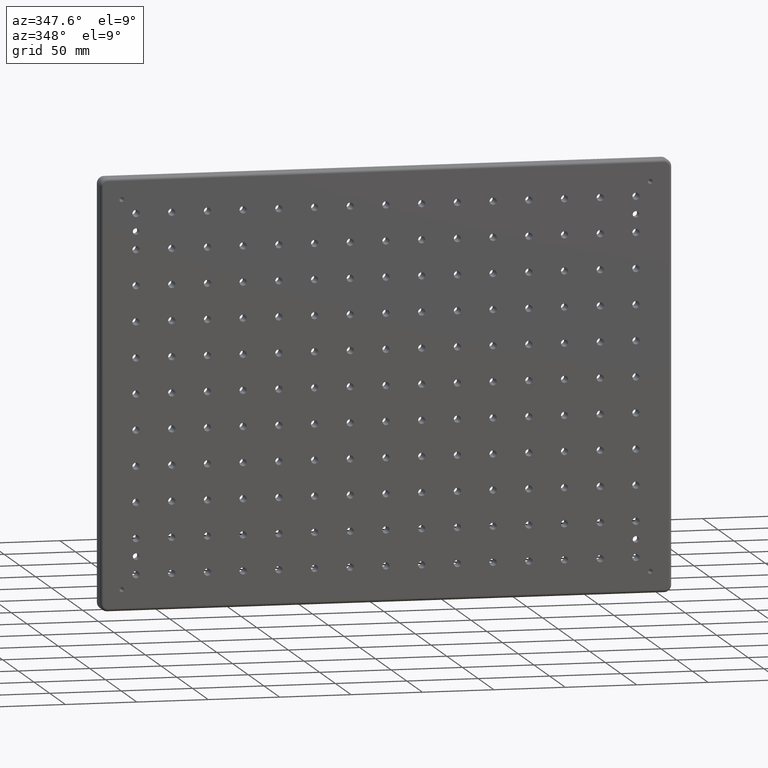
[diagram: clean part render]
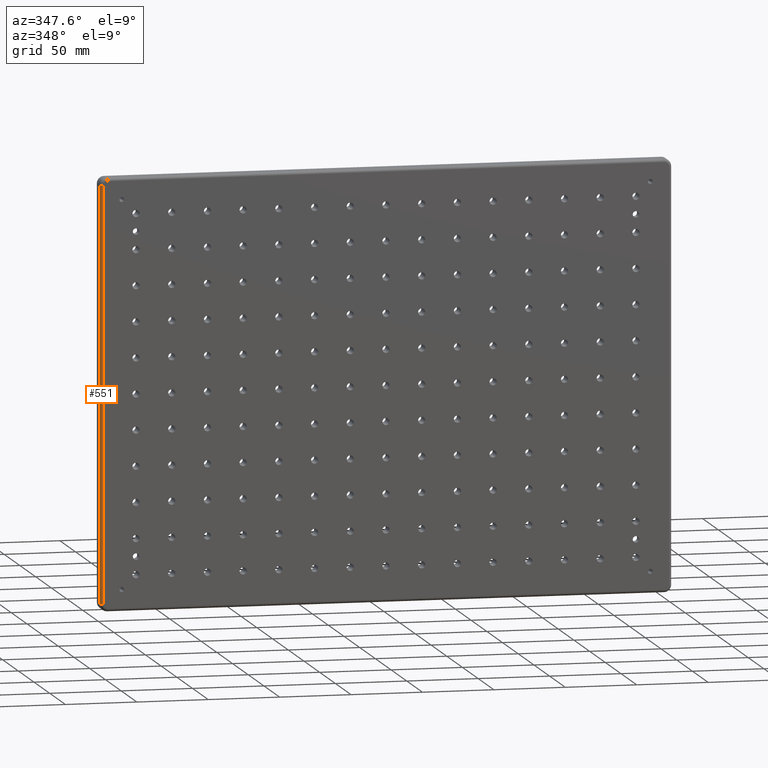
[diagram: same view with one face highlighted and labeled with its STEP entity id]
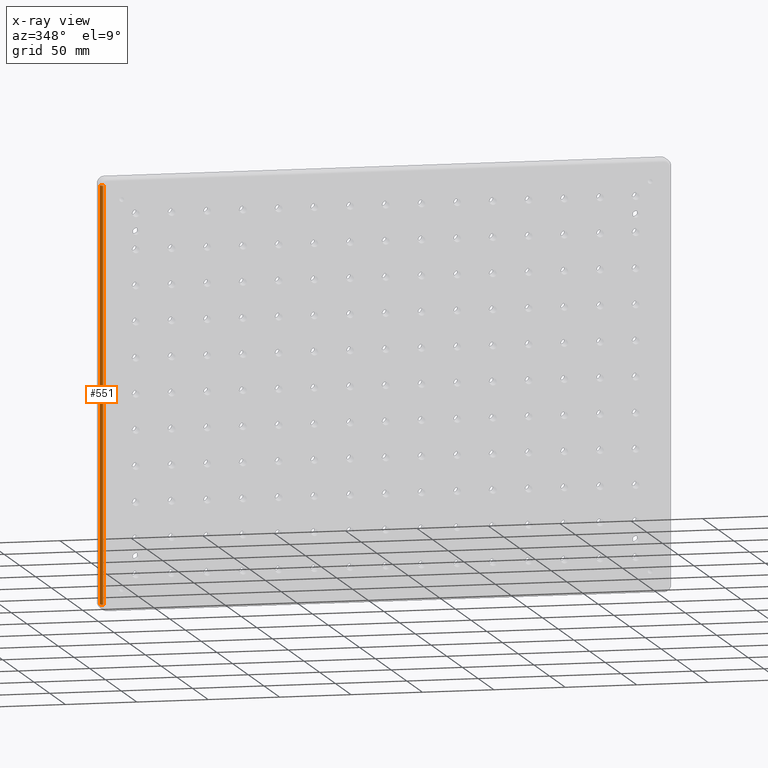
[diagram: x-ray of the same camera — body ghosted, the highlighted face saturated]
A machine part, auxiliary view. The second image highlights one B-rep face of the part: STEP entity #551.
The next image is the same camera in x-ray: the body ghosted, the highlighted face saturated — about 0% of this face is hidden behind the body in this view.
In plain terms, the highlighted cylindrical surface (edge-blend (fillet) strip) has radius 2 mm, axis along (0, 0, -1).
Its self-contained STEP definition (entity closure, byte-faithful):
#321 = ORIENTED_EDGE ( 'NONE', *, *, #10775, .T. ) ;
#446 = DIRECTION ( 'NONE',  ( 0.0000000000000000000, 0.0000000000000000000, 1.000000000000000000 ) ) ;
#551 = ADVANCED_FACE ( 'NONE', ( #2681 ), #2510, .T. ) ;
#1466 = CIRCLE ( 'NONE', #4508, 2.000000000000001800 ) ;
#2110 = VERTEX_POINT ( 'NONE', #12480 ) ;
#2510 = CYLINDRICAL_SURFACE ( 'NONE', #2784, 2.000000000000001800 ) ;
#2681 = FACE_OUTER_BOUND ( 'NONE', #10925, .T. ) ;
#2784 = AXIS2_PLACEMENT_3D ( 'NONE', #3045, #11715, #8336 ) ;
#3045 = CARTESIAN_POINT ( 'NONE',  ( -198.0000000000000000, -4.500000000000000000, 150.0000000000000000 ) ) ;
#3217 = ORIENTED_EDGE ( 'NONE', *, *, #5513, .F. ) ;
#3255 = DIRECTION ( 'NONE',  ( 0.0000000000000000000, 0.0000000000000000000, 1.000000000000000000 ) ) ;
#3447 = DIRECTION ( 'NONE',  ( 1.000000000000000000, 0.0000000000000000000, 0.0000000000000000000 ) ) ;
#3516 = CARTESIAN_POINT ( 'NONE',  ( -198.0000000000000000, -6.500000000000000000, -144.9999999999999400 ) ) ;
#3941 = CARTESIAN_POINT ( 'NONE',  ( -200.0000000000000000, -4.500000000000000000, 145.0000000000000000 ) ) ;
#4216 = ORIENTED_EDGE ( 'NONE', *, *, #10797, .F. ) ;
#4508 = AXIS2_PLACEMENT_3D ( 'NONE', #13756, #3255, #3447 ) ;
#5436 = VERTEX_POINT ( 'NONE', #12013 ) ;
#5513 = EDGE_CURVE ( 'NONE', #5436, #11233, #5623, .T. ) ;
#5623 = LINE ( 'NONE', #3516, #10314 ) ;
#5634 = ORIENTED_EDGE ( 'NONE', *, *, #7639, .F. ) ;
#5644 = DIRECTION ( 'NONE',  ( 1.000000000000000000, 0.0000000000000000000, 0.0000000000000000000 ) ) ;
#5869 = VECTOR ( 'NONE', #13526, 1000.000000000000000 ) ;
#7203 = LINE ( 'NONE', #3941, #5869 ) ;
#7639 = EDGE_CURVE ( 'NONE', #7737, #2110, #7203, .T. ) ;
#7737 = VERTEX_POINT ( 'NONE', #13749 ) ;
#8336 = DIRECTION ( 'NONE',  ( -1.000000000000000000, 0.0000000000000000000, 0.0000000000000000000 ) ) ;
#8831 = CARTESIAN_POINT ( 'NONE',  ( -198.0000000000000000, -4.500000000000000000, 145.0000000000000000 ) ) ;
#9175 = CARTESIAN_POINT ( 'NONE',  ( -198.0000000000000000, -6.500000000000000000, -144.9999999999999400 ) ) ;
#9985 = DIRECTION ( 'NONE',  ( -0.0000000000000000000, -0.0000000000000000000, -1.000000000000000000 ) ) ;
#10314 = VECTOR ( 'NONE', #9985, 1000.000000000000000 ) ;
#10775 = EDGE_CURVE ( 'NONE', #7737, #11233, #1466, .T. ) ;
#10797 = EDGE_CURVE ( 'NONE', #2110, #5436, #11174, .T. ) ;
#10925 = EDGE_LOOP ( 'NONE', ( #321, #3217, #4216, #5634 ) ) ;
#11174 = CIRCLE ( 'NONE', #12426, 2.000000000000001800 ) ;
#11233 = VERTEX_POINT ( 'NONE', #9175 ) ;
#11715 = DIRECTION ( 'NONE',  ( 0.0000000000000000000, 0.0000000000000000000, -1.000000000000000000 ) ) ;
#12013 = CARTESIAN_POINT ( 'NONE',  ( -198.0000000000000000, -6.500000000000000000, 145.0000000000000000 ) ) ;
#12426 = AXIS2_PLACEMENT_3D ( 'NONE', #8831, #446, #5644 ) ;
#12480 = CARTESIAN_POINT ( 'NONE',  ( -200.0000000000000000, -4.500000000000000000, 145.0000000000000000 ) ) ;
#13526 = DIRECTION ( 'NONE',  ( -0.0000000000000000000, 0.0000000000000000000, 1.000000000000000000 ) ) ;
#13749 = CARTESIAN_POINT ( 'NONE',  ( -200.0000000000000000, -4.500000000000000000, -144.9999999999999400 ) ) ;
#13756 = CARTESIAN_POINT ( 'NONE',  ( -198.0000000000000000, -4.500000000000000000, -144.9999999999999400 ) ) ;